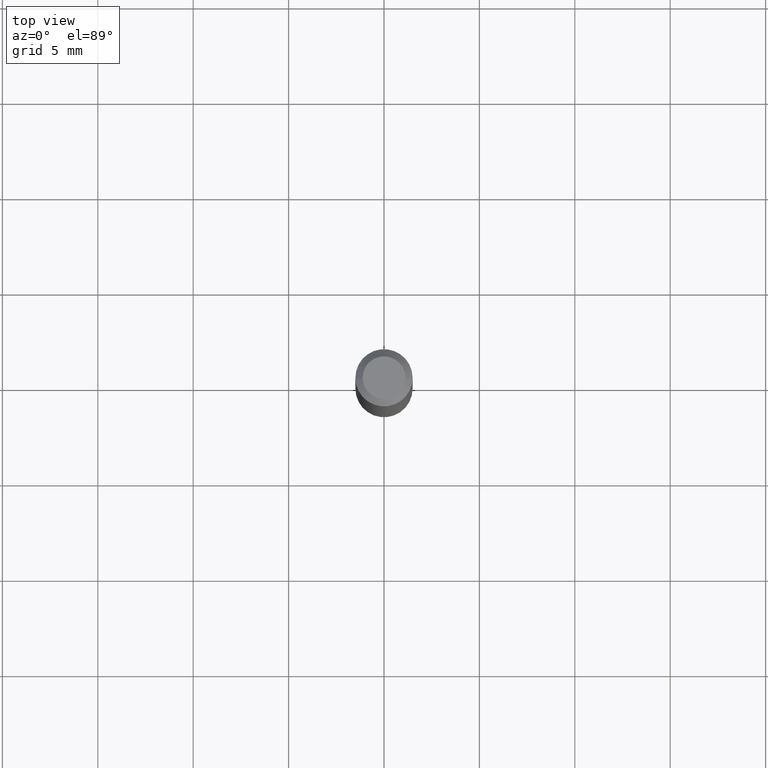
[diagram: clean part render]
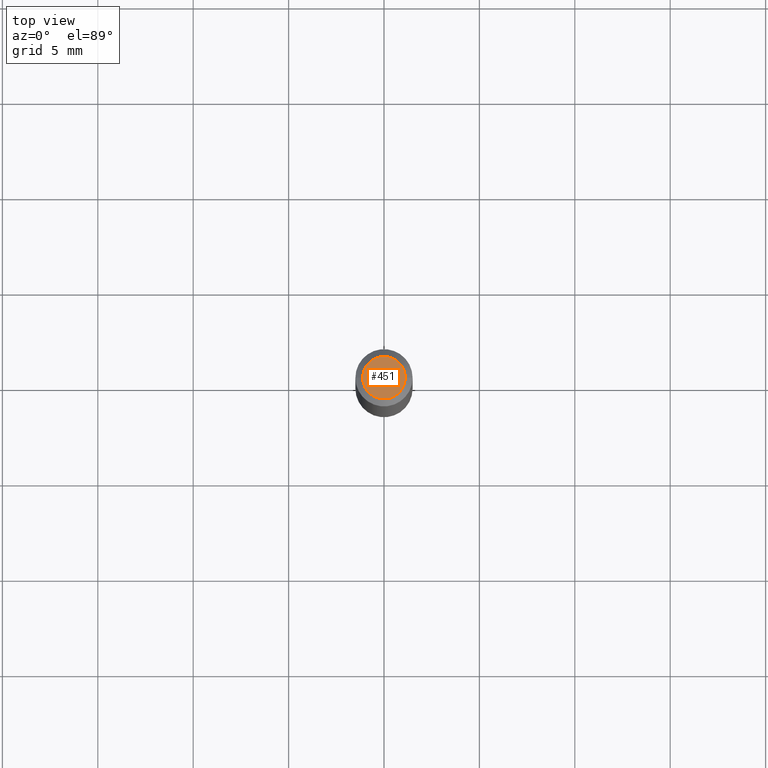
[diagram: same view with one face highlighted and labeled with its STEP entity id]
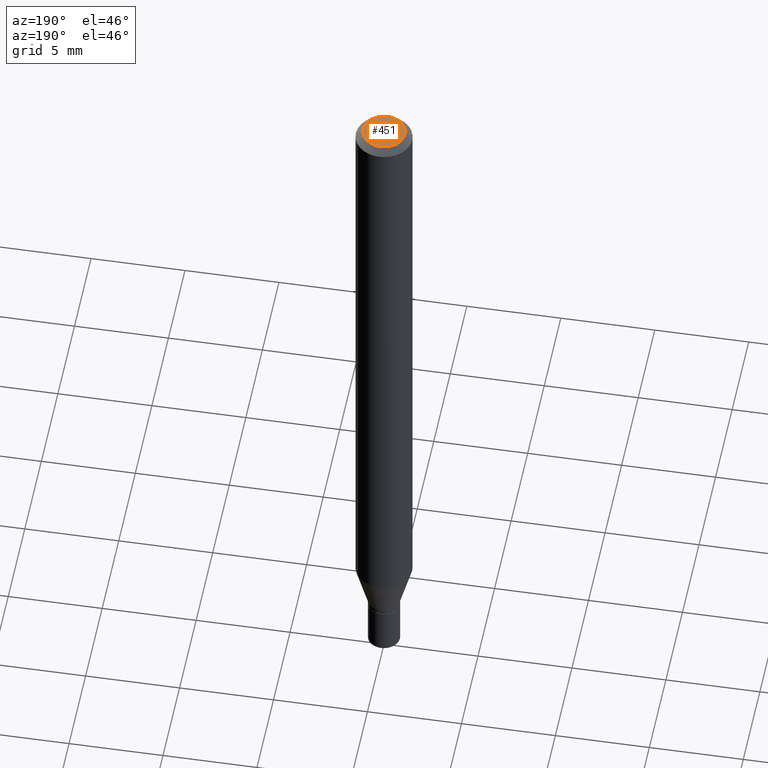
[diagram: same view with one face highlighted and labeled with its STEP entity id]
A machine part, top view. The second image highlights one B-rep face of the part: STEP entity #451.
A second angle (auxiliary view) of the same face is appended — the face is thin or edge-on in the first view.
In plain terms, the highlighted planar face has unit normal (0, -0, -1).
Its self-contained STEP definition (entity closure, byte-faithful):
#12 = DIRECTION ( 'NONE',  ( -2.445468806185136597E-29, 3.491481338843145583E-15, 1.000000000000000000 ) ) ;
#21 = EDGE_CURVE ( 'NONE', #190, #169, #437, .T. ) ;
#36 = DIRECTION ( 'NONE',  ( -1.000000000000000000, 6.982962677686265922E-15, -4.876176775795935793E-29 ) ) ;
#64 = CARTESIAN_POINT ( 'NONE',  ( 4.935362355770148873E-45, -7.046389437484354328E-31, -2.018166146011560548E-16 ) ) ;
#89 = EDGE_LOOP ( 'NONE', ( #310, #238 ) ) ;
#109 = CARTESIAN_POINT ( 'NONE',  ( 0.04404999999999999888, -3.798447818264464023E-16, -2.018166146011536389E-16 ) ) ;
#164 = FACE_OUTER_BOUND ( 'NONE', #89, .T. ) ;
#167 = CIRCLE ( 'NONE', #435, 0.04404999999999999888 ) ;
#169 = VERTEX_POINT ( 'NONE', #357 ) ;
#190 = VERTEX_POINT ( 'NONE', #109 ) ;
#201 = DIRECTION ( 'NONE',  ( -2.445468806185136597E-29, 3.491481338843145583E-15, 1.000000000000000000 ) ) ;
#238 = ORIENTED_EDGE ( 'NONE', *, *, #21, .T. ) ;
#241 = AXIS2_PLACEMENT_3D ( 'NONE', #287, #12, #363 ) ;
#245 = CARTESIAN_POINT ( 'NONE',  ( 3.075995059520799729E-16, 0.04404999999999999888, -2.547080602766185685E-16 ) ) ;
#287 = CARTESIAN_POINT ( 'NONE',  ( 4.935362355770148873E-45, -7.046389437484354328E-31, -2.018166146011560548E-16 ) ) ;
#291 = AXIS2_PLACEMENT_3D ( 'NONE', #245, #466, #36 ) ;
#310 = ORIENTED_EDGE ( 'NONE', *, *, #462, .T. ) ;
#357 = CARTESIAN_POINT ( 'NONE',  ( -0.04404999999999999888, 3.337856159934031180E-16, -2.018166146011582981E-16 ) ) ;
#363 = DIRECTION ( 'NONE',  ( 1.000000000000000000, -6.982962677686265922E-15, 4.888540261209747396E-29 ) ) ;
#386 = DIRECTION ( 'NONE',  ( 1.000000000000000000, -6.982962677686265922E-15, 4.888540261209747396E-29 ) ) ;
#423 = PLANE ( 'NONE',  #291 ) ;
#435 = AXIS2_PLACEMENT_3D ( 'NONE', #64, #201, #386 ) ;
#437 = CIRCLE ( 'NONE', #241, 0.04404999999999999888 ) ;
#451 = ADVANCED_FACE ( 'NONE', ( #164 ), #423, .F. ) ;
#462 = EDGE_CURVE ( 'NONE', #169, #190, #167, .T. ) ;
#466 = DIRECTION ( 'NONE',  ( 2.438088387897960049E-29, -3.491481338843145188E-15, -1.000000000000000000 ) ) ;